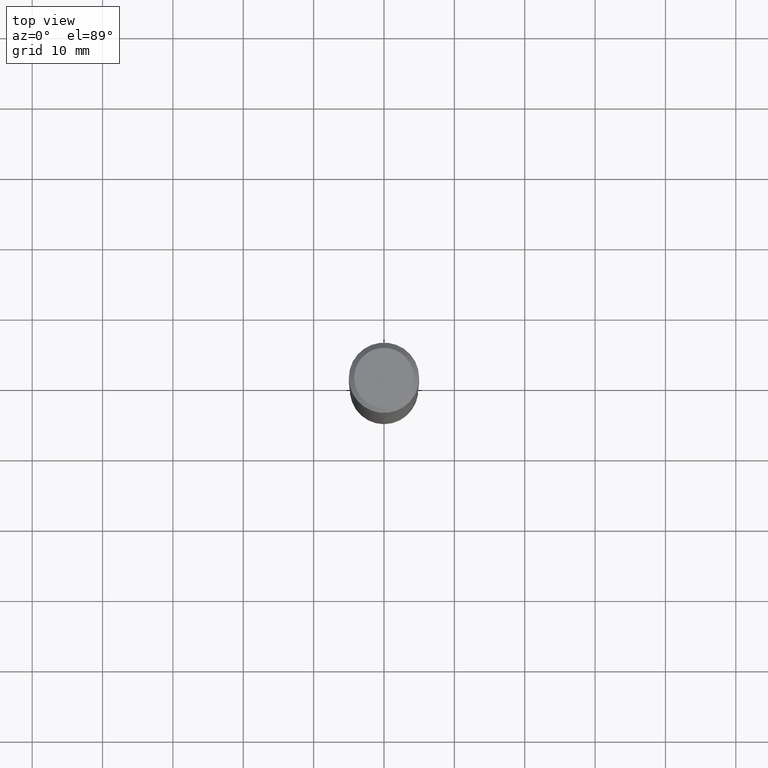
[diagram: clean part render]
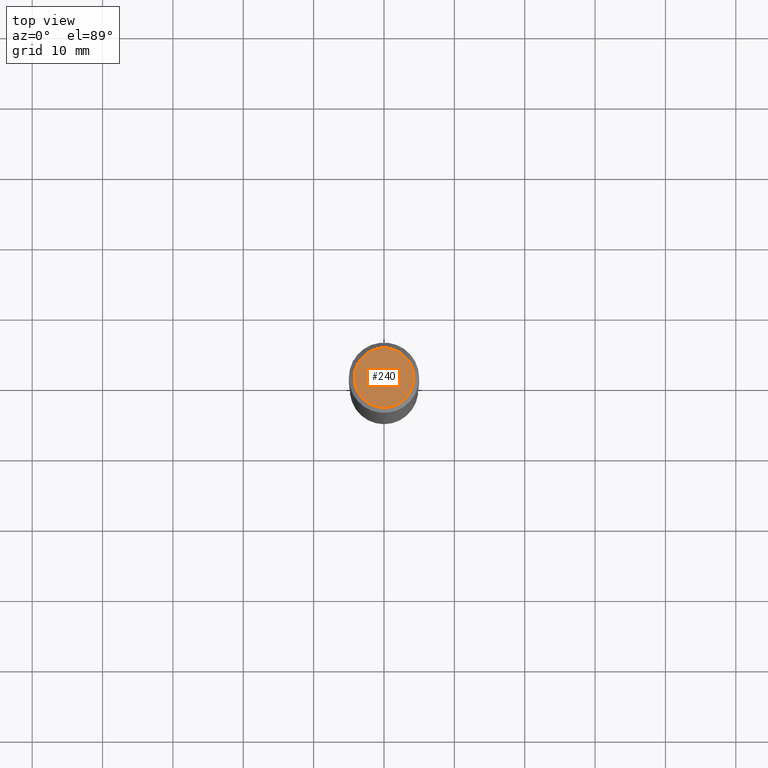
[diagram: same view with one face highlighted and labeled with its STEP entity id]
A machine part, top view. The second image highlights one B-rep face of the part: STEP entity #240.
In plain terms, the highlighted planar face has unit normal (0, -0, -1).
Its self-contained STEP definition (entity closure, byte-faithful):
#11 = VERTEX_POINT ( 'NONE', #175 ) ;
#14 = CARTESIAN_POINT ( 'NONE',  ( -1.001697619218021790E-46, 1.430158722866389718E-32, 4.096137381448108366E-18 ) ) ;
#32 = AXIS2_PLACEMENT_3D ( 'NONE', #124, #88, #393 ) ;
#66 = PLANE ( 'NONE',  #150 ) ;
#88 = DIRECTION ( 'NONE',  ( -2.445468806185136597E-29, 3.491481338843145583E-15, 1.000000000000000000 ) ) ;
#124 = CARTESIAN_POINT ( 'NONE',  ( -1.001697619218021790E-46, 1.430158722866389718E-32, 4.096137381448108366E-18 ) ) ;
#133 = CARTESIAN_POINT ( 'NONE',  ( -0.1673224999999999851, 1.219954130253505263E-15, 4.096137381439757534E-18 ) ) ;
#137 = DIRECTION ( 'NONE',  ( 1.000000000000000000, -6.982962677686267499E-15, 4.876294436782262290E-29 ) ) ;
#150 = AXIS2_PLACEMENT_3D ( 'NONE', #153, #375, #336 ) ;
#153 = CARTESIAN_POINT ( 'NONE',  ( -5.008488096090108951E-47, 7.150793614331948590E-33, 2.048068690724054183E-18 ) ) ;
#166 = EDGE_CURVE ( 'NONE', #459, #11, #400, .T. ) ;
#175 = CARTESIAN_POINT ( 'NONE',  ( 0.1673224999999999851, -1.300749711163072397E-15, 4.096137381456741925E-18 ) ) ;
#201 = EDGE_LOOP ( 'NONE', ( #275, #213 ) ) ;
#213 = ORIENTED_EDGE ( 'NONE', *, *, #426, .T. ) ;
#228 = FACE_OUTER_BOUND ( 'NONE', #201, .T. ) ;
#240 = ADVANCED_FACE ( 'NONE', ( #228 ), #66, .F. ) ;
#275 = ORIENTED_EDGE ( 'NONE', *, *, #166, .T. ) ;
#285 = AXIS2_PLACEMENT_3D ( 'NONE', #14, #480, #137 ) ;
#336 = DIRECTION ( 'NONE',  ( -1.000000000000000000, 6.982962677686265922E-15, -4.876176775795935793E-29 ) ) ;
#353 = CIRCLE ( 'NONE', #32, 0.1673224999999999851 ) ;
#375 = DIRECTION ( 'NONE',  ( 2.438088387897960049E-29, -3.491481338843145188E-15, -1.000000000000000000 ) ) ;
#393 = DIRECTION ( 'NONE',  ( 1.000000000000000000, -6.982962677686267499E-15, 4.876294436782262290E-29 ) ) ;
#400 = CIRCLE ( 'NONE', #285, 0.1673224999999999851 ) ;
#426 = EDGE_CURVE ( 'NONE', #11, #459, #353, .T. ) ;
#459 = VERTEX_POINT ( 'NONE', #133 ) ;
#480 = DIRECTION ( 'NONE',  ( -2.445468806185136597E-29, 3.491481338843145583E-15, 1.000000000000000000 ) ) ;